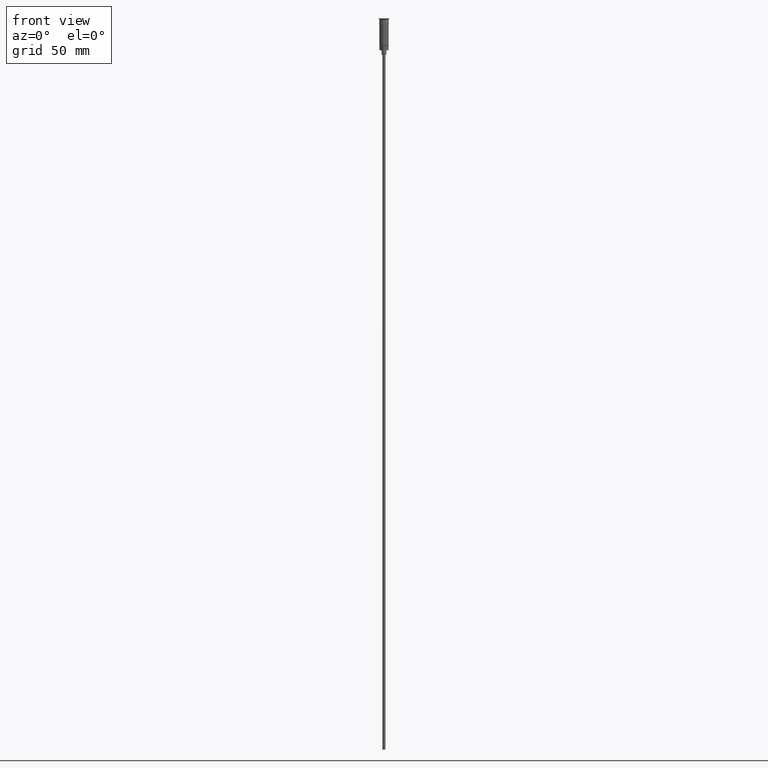
[diagram: clean part render]
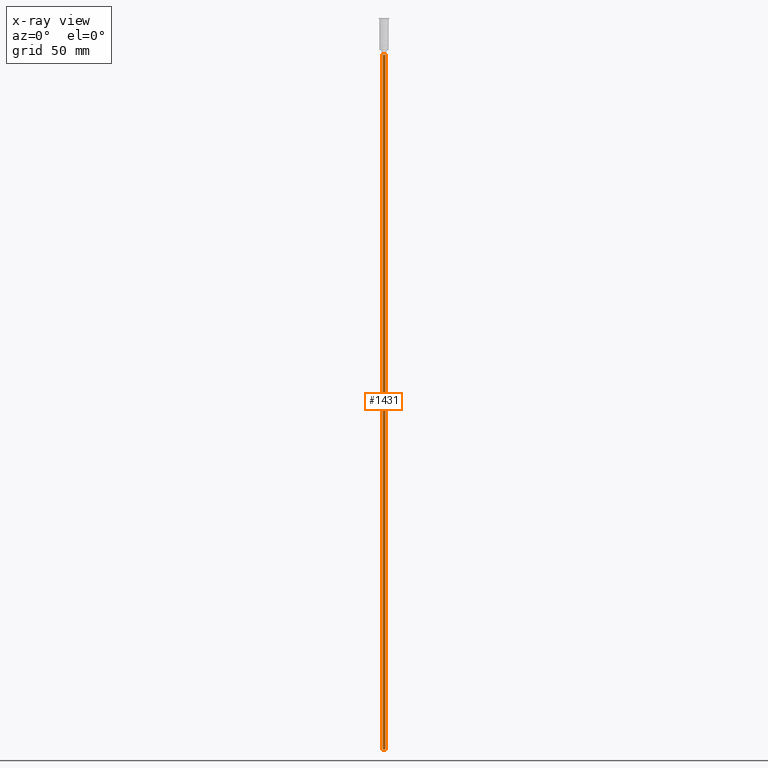
[diagram: x-ray — body ghosted, one internal face saturated and labeled with its STEP entity id]
A machine part, front view, then the same camera in x-ray: the body is ghosted and one INTERNAL B-rep face — a face not visible from any outside direction — is saturated and labeled: STEP entity #1431.
In plain terms, the highlighted cylindrical surface (edge-blend (fillet) strip) has radius 1 mm, axis along (-0, -0, 1).
Its self-contained STEP definition (entity closure, byte-faithful):
#7 = CARTESIAN_POINT ( 'NONE',  ( 0.000000000000000000, 0.000000000000000000, -470.5000000000000568 ) ) ;
#21 = FACE_OUTER_BOUND ( 'NONE', #480, .T. ) ;
#41 = DIRECTION ( 'NONE',  ( -1.000000000000000000, 0.000000000000000000, 0.000000000000000000 ) ) ;
#101 = LINE ( 'NONE', #238, #1025 ) ;
#104 = VERTEX_POINT ( 'NONE', #758 ) ;
#110 = CIRCLE ( 'NONE', #1117, 0.9999999999999997780 ) ;
#114 = ORIENTED_EDGE ( 'NONE', *, *, #725, .F. ) ;
#122 = DIRECTION ( 'NONE',  ( 0.000000000000000000, 0.000000000000000000, -1.000000000000000000 ) ) ;
#179 = VERTEX_POINT ( 'NONE', #939 ) ;
#208 = ORIENTED_EDGE ( 'NONE', *, *, #564, .T. ) ;
#218 = EDGE_CURVE ( 'NONE', #179, #1368, #1463, .T. ) ;
#238 = CARTESIAN_POINT ( 'NONE',  ( 0.9999999999999997780, 0.000000000000000000, -470.5000000000000568 ) ) ;
#316 = DIRECTION ( 'NONE',  ( -0.000000000000000000, -0.000000000000000000, 1.000000000000000000 ) ) ;
#369 = DIRECTION ( 'NONE',  ( 1.000000000000000000, 0.000000000000000000, 0.000000000000000000 ) ) ;
#445 = DIRECTION ( 'NONE',  ( -1.000000000000000000, 0.000000000000000000, 0.000000000000000000 ) ) ;
#449 = EDGE_CURVE ( 'NONE', #947, #104, #110, .T. ) ;
#476 = DIRECTION ( 'NONE',  ( -0.000000000000000000, -0.000000000000000000, 1.000000000000000000 ) ) ;
#480 = EDGE_LOOP ( 'NONE', ( #769, #208, #1353, #114 ) ) ;
#487 = CARTESIAN_POINT ( 'NONE',  ( 0.000000000000000000, 0.000000000000000000, -23.50000000000000000 ) ) ;
#564 = EDGE_CURVE ( 'NONE', #947, #179, #1041, .T. ) ;
#725 = EDGE_CURVE ( 'NONE', #104, #1368, #101, .T. ) ;
#758 = CARTESIAN_POINT ( 'NONE',  ( 0.9999999999999997780, 0.000000000000000000, -470.5000000000000568 ) ) ;
#769 = ORIENTED_EDGE ( 'NONE', *, *, #449, .F. ) ;
#818 = CARTESIAN_POINT ( 'NONE',  ( -0.9999999999999997780, 1.224646799147352961E-16, -470.5000000000000568 ) ) ;
#852 = AXIS2_PLACEMENT_3D ( 'NONE', #7, #1475, #369 ) ;
#871 = VECTOR ( 'NONE', #316, 1000.000000000000000 ) ;
#925 = DIRECTION ( 'NONE',  ( 0.000000000000000000, 0.000000000000000000, -1.000000000000000000 ) ) ;
#939 = CARTESIAN_POINT ( 'NONE',  ( -0.9999999999999997780, 1.224646799147352961E-16, -23.50000000000000000 ) ) ;
#947 = VERTEX_POINT ( 'NONE', #818 ) ;
#1025 = VECTOR ( 'NONE', #476, 1000.000000000000000 ) ;
#1041 = LINE ( 'NONE', #1533, #871 ) ;
#1043 = CARTESIAN_POINT ( 'NONE',  ( 0.000000000000000000, 0.000000000000000000, -470.5000000000000568 ) ) ;
#1117 = AXIS2_PLACEMENT_3D ( 'NONE', #1043, #925, #445 ) ;
#1135 = AXIS2_PLACEMENT_3D ( 'NONE', #487, #122, #41 ) ;
#1230 = CARTESIAN_POINT ( 'NONE',  ( 0.9999999999999997780, 0.000000000000000000, -23.50000000000000000 ) ) ;
#1241 = CYLINDRICAL_SURFACE ( 'NONE', #852, 0.9999999999999997780 ) ;
#1353 = ORIENTED_EDGE ( 'NONE', *, *, #218, .T. ) ;
#1368 = VERTEX_POINT ( 'NONE', #1230 ) ;
#1431 = ADVANCED_FACE ( 'NONE', ( #21 ), #1241, .T. ) ;
#1463 = CIRCLE ( 'NONE', #1135, 0.9999999999999997780 ) ;
#1475 = DIRECTION ( 'NONE',  ( -0.000000000000000000, -0.000000000000000000, 1.000000000000000000 ) ) ;
#1533 = CARTESIAN_POINT ( 'NONE',  ( -0.9999999999999997780, 1.224646799147352961E-16, -470.5000000000000568 ) ) ;